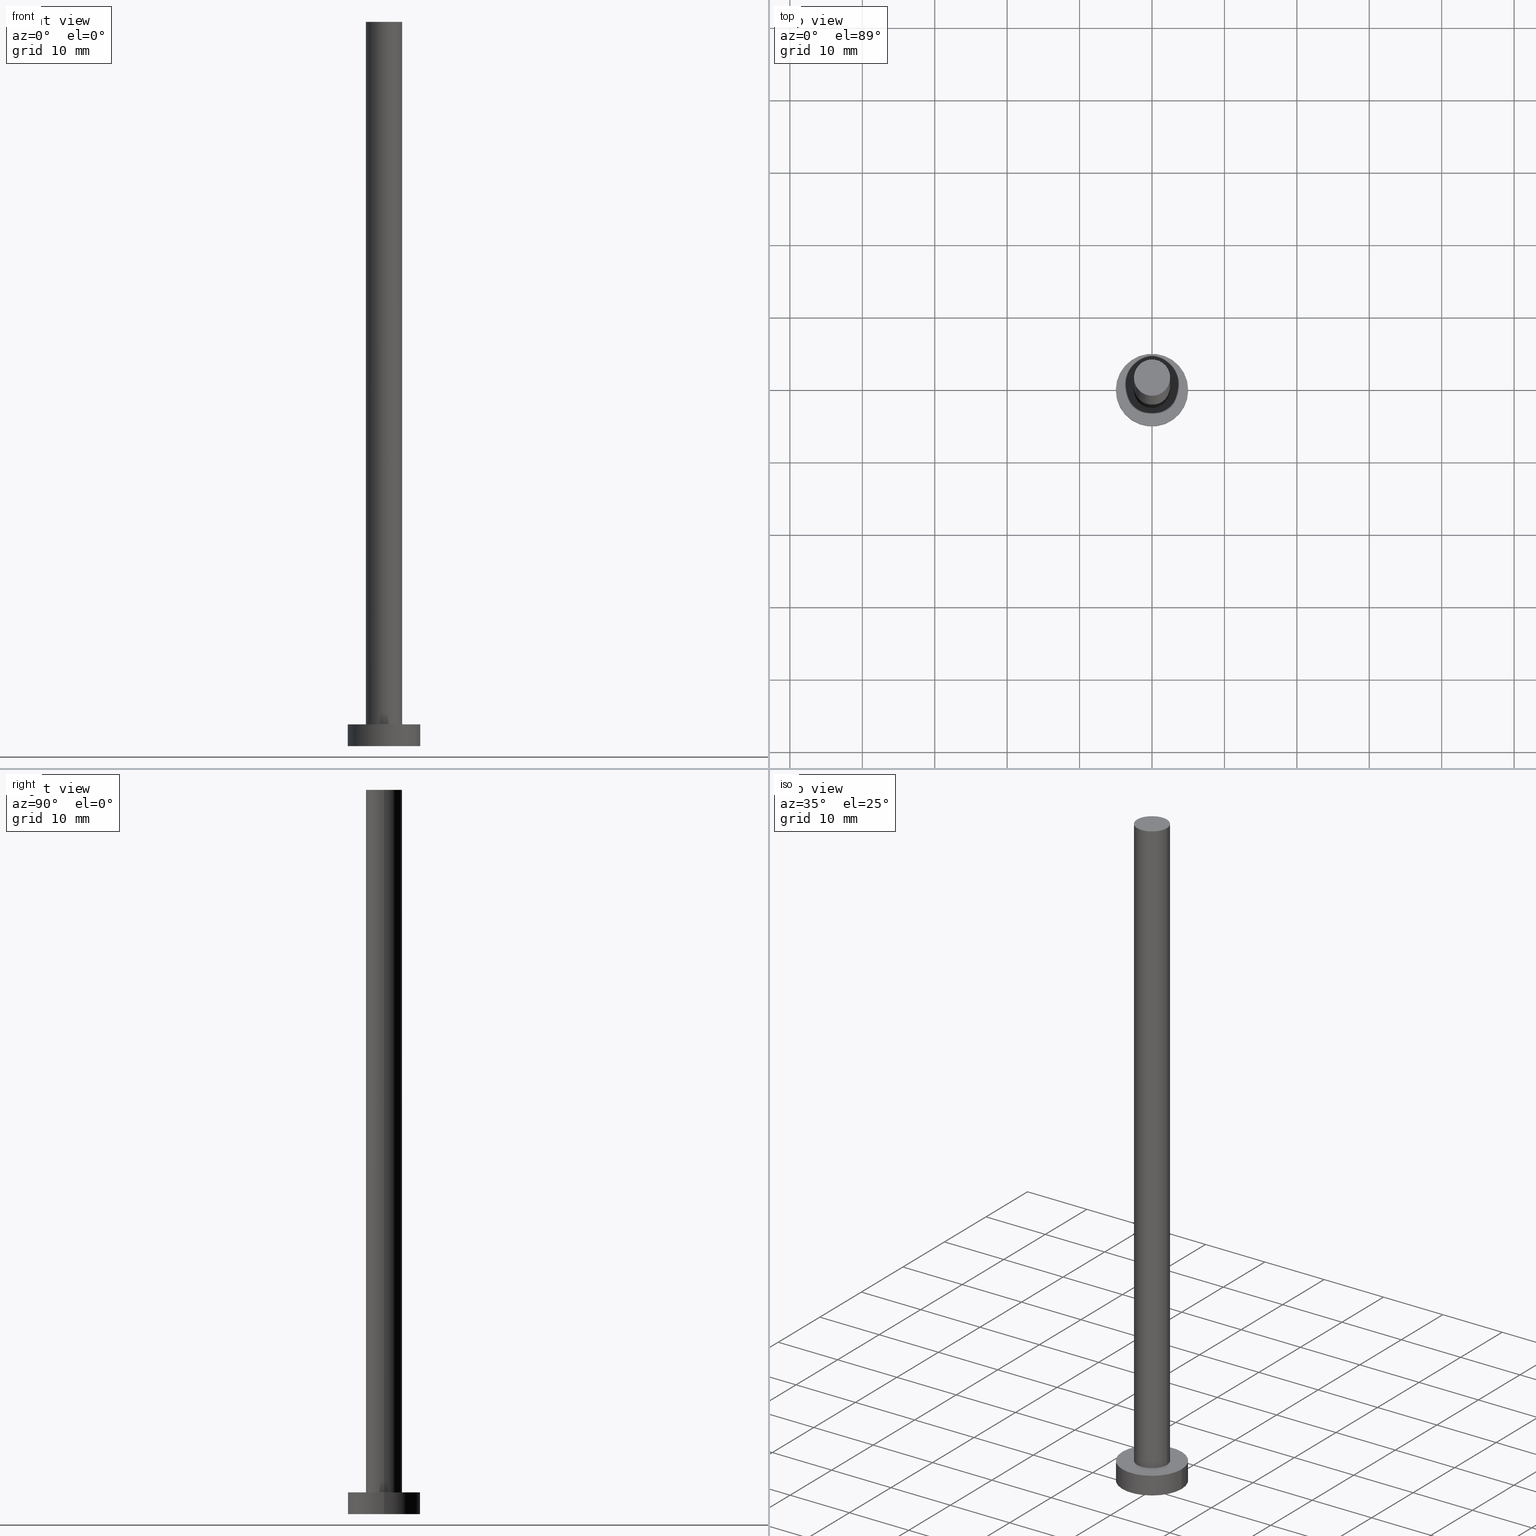
[diagram: canonical four-view strip — front | top / right | iso, engineering-drawing reading convention]
A machine part, canonical four-view strip (front | top / right | iso — engineering-drawing reading convention). The complete STEP part file that produces these views, byte-faithful:
ISO-10303-21;
HEADER;
FILE_DESCRIPTION (( 'STEP AP203' ),
    '1' );
FILE_NAME ('b135.STEP',
    '2023-02-13T13:27:08',
    ( '' ),
    ( '' ),
    'SwSTEP 2.0',
    'SolidWorks 2019',
    '' );
FILE_SCHEMA (( 'CONFIG_CONTROL_DESIGN' ));
ENDSEC;

DATA;
#1 = PERSON_AND_ORGANIZATION ( #2, #100 ) ;
#2 = PERSON ( 'NEUR�EN�', 'NEUR�EN�', 'NEUR�EN�', ('NEUR�EN�'), ('NEUR�EN�'), ('NEUR�EN�') ) ;
#3 = PERSON_AND_ORGANIZATION ( #2, #100 ) ;
#4 = ORIENTED_EDGE ( 'NONE', *, *, #13, .T. ) ;
#5 = ORIENTED_EDGE ( 'NONE', *, *, #215, .F. ) ;
#6 = AXIS2_PLACEMENT_3D ( 'NONE', #8, #81, #156 ) ;
#7 = VECTOR ( 'NONE', #96, 1000.000000000000000 ) ;
#8 = CARTESIAN_POINT ( 'NONE',  ( 0.000000000000000000, 0.000000000000000000, 100.0000000000000000 ) ) ;
#9 = CIRCLE ( 'NONE', #118, 5.000000000000000000 ) ;
#10 = ORIENTED_EDGE ( 'NONE', *, *, #125, .T. ) ;
#11 = ORIENTED_EDGE ( 'NONE', *, *, #119, .T. ) ;
#12 = EDGE_LOOP ( 'NONE', ( #79, #196 ) ) ;
#13 = EDGE_CURVE ( 'NONE', #155, #184, #154, .T. ) ;
#14 = CIRCLE ( 'NONE', #185, 2.500000000000000000 ) ;
#15 = LOCAL_TIME ( 14, 27, 8.000000000000000000, #208 ) ;
#16 = CALENDAR_DATE ( 2023, 13, 2 ) ;
#17 = DIRECTION ( 'NONE',  ( -0.000000000000000000, -0.000000000000000000, -1.000000000000000000 ) ) ;
#18 = APPROVAL ( #53, 'NEUR�EN�' ) ;
#19 = PERSON_AND_ORGANIZATION_ROLE ( 'design_supplier' ) ;
#20 = PERSON_AND_ORGANIZATION ( #2, #100 ) ;
#21 = SECURITY_CLASSIFICATION_LEVEL ( 'unclassified' ) ;
#22 = VECTOR ( 'NONE', #242, 1000.000000000000000 ) ;
#23 = PLANE ( 'NONE',  #36 ) ;
#24 = VECTOR ( 'NONE', #98, 1000.000000000000000 ) ;
#25 = CARTESIAN_POINT ( 'NONE',  ( 0.000000000000000000, 0.000000000000000000, 0.000000000000000000 ) ) ;
#26 = DIRECTION ( 'NONE',  ( 0.000000000000000000, 0.000000000000000000, 1.000000000000000000 ) ) ;
#27 = APPROVAL ( #115, 'NEUR�EN�' ) ;
#28 = PERSON_AND_ORGANIZATION ( #2, #100 ) ;
#29 = LINE ( 'NONE', #107, #22 ) ;
#30 = CARTESIAN_POINT ( 'NONE',  ( 2.500000000000000000, 3.061616997868382648E-16, 3.000000000000000000 ) ) ;
#31 = CARTESIAN_POINT ( 'NONE',  ( 0.000000000000000000, 0.000000000000000000, 0.000000000000000000 ) ) ;
#32 = DIRECTION ( 'NONE',  ( -1.000000000000000000, 0.000000000000000000, 0.000000000000000000 ) ) ;
#33 = CC_DESIGN_DATE_AND_TIME_ASSIGNMENT ( #163, #206, ( #157 ) ) ;
#34 = DATE_AND_TIME ( #135, #106 ) ;
#35 =( NAMED_UNIT ( * ) PLANE_ANGLE_UNIT ( ) SI_UNIT ( $, .RADIAN. ) );
#36 = AXIS2_PLACEMENT_3D ( 'NONE', #173, #213, #153 ) ;
#37 = FACE_OUTER_BOUND ( 'NONE', #181, .T. ) ;
#38 = DIRECTION ( 'NONE',  ( -1.000000000000000000, 0.000000000000000000, 0.000000000000000000 ) ) ;
#39 = APPLICATION_CONTEXT ( 'configuration controlled 3d designs of mechanical parts and assemblies' ) ;
#40 = DIRECTION ( 'NONE',  ( 0.000000000000000000, 0.000000000000000000, 1.000000000000000000 ) ) ;
#41 = APPROVAL_PERSON_ORGANIZATION ( #51, #87, #54 ) ;
#42 = VERTEX_POINT ( 'NONE', #177 ) ;
#43 = CC_DESIGN_PERSON_AND_ORGANIZATION_ASSIGNMENT ( #167, #254, ( #248 ) ) ;
#44 = FACE_OUTER_BOUND ( 'NONE', #102, .T. ) ;
#45 = AXIS2_PLACEMENT_3D ( 'NONE', #25, #197, #241 ) ;
#46 = ORIENTED_EDGE ( 'NONE', *, *, #165, .F. ) ;
#47 = ORIENTED_EDGE ( 'NONE', *, *, #109, .F. ) ;
#48 = EDGE_LOOP ( 'NONE', ( #222, #85, #141, #160 ) ) ;
#49 = ORIENTED_EDGE ( 'NONE', *, *, #125, .F. ) ;
#50 = PRODUCT_DEFINITION_SHAPE ( 'NONE', 'NONE',  #157 ) ;
#51 = PERSON_AND_ORGANIZATION ( #2, #100 ) ;
#52 = DIRECTION ( 'NONE',  ( 1.000000000000000000, 0.000000000000000000, -0.000000000000000000 ) ) ;
#53 = APPROVAL_STATUS ( 'not_yet_approved' ) ;
#54 = APPROVAL_ROLE ( '' ) ;
#55 = CARTESIAN_POINT ( 'NONE',  ( 5.000000000000000000, 6.123233995736766282E-16, 0.000000000000000000 ) ) ;
#56 = PERSON_AND_ORGANIZATION_ROLE ( 'design_owner' ) ;
#57 = CARTESIAN_POINT ( 'NONE',  ( 0.000000000000000000, 0.000000000000000000, 100.0000000000000000 ) ) ;
#58 = ADVANCED_FACE ( 'NONE', ( #105 ), #220, .T. ) ;
#59 = EDGE_CURVE ( 'NONE', #42, #147, #29, .T. ) ;
#60 = FACE_OUTER_BOUND ( 'NONE', #48, .T. ) ;
#61 = APPROVAL_PERSON_ORGANIZATION ( #20, #27, #235 ) ;
#62 = PLANE ( 'NONE',  #191 ) ;
#63 = CC_DESIGN_PERSON_AND_ORGANIZATION_ASSIGNMENT ( #150, #56, ( #86 ) ) ;
#64 = ADVANCED_FACE ( 'NONE', ( #44 ), #122, .T. ) ;
#65 = EDGE_CURVE ( 'NONE', #217, #121, #209, .T. ) ;
#66 = CC_DESIGN_PERSON_AND_ORGANIZATION_ASSIGNMENT ( #3, #19, ( #248 ) ) ;
#67 = EDGE_CURVE ( 'NONE', #147, #161, #133, .T. ) ;
#68 = DIRECTION ( 'NONE',  ( 0.000000000000000000, 0.000000000000000000, 1.000000000000000000 ) ) ;
#69 = CC_DESIGN_APPROVAL ( #87, ( #248 ) ) ;
#70 = CALENDAR_DATE ( 2023, 13, 2 ) ;
#71 = LINE ( 'NONE', #190, #24 ) ;
#72 = LINE ( 'NONE', #128, #7 ) ;
#73 = CARTESIAN_POINT ( 'NONE',  ( 0.000000000000000000, 0.000000000000000000, 0.000000000000000000 ) ) ;
#74 = DIRECTION ( 'NONE',  ( -0.000000000000000000, -0.000000000000000000, -1.000000000000000000 ) ) ;
#75 = DATE_AND_TIME ( #234, #15 ) ;
#76 = EDGE_LOOP ( 'NONE', ( #94, #46 ) ) ;
#77 = LOCAL_TIME ( 14, 27, 8.000000000000000000, #228 ) ;
#78 = DIRECTION ( 'NONE',  ( -0.000000000000000000, -0.000000000000000000, -1.000000000000000000 ) ) ;
#79 = ORIENTED_EDGE ( 'NONE', *, *, #215, .T. ) ;
#80 = CC_DESIGN_SECURITY_CLASSIFICATION ( #236, ( #248 ) ) ;
#81 = DIRECTION ( 'NONE',  ( -0.000000000000000000, -0.000000000000000000, -1.000000000000000000 ) ) ;
#82 = ADVANCED_BREP_SHAPE_REPRESENTATION ( 'b135', ( #229, #45 ), #243 ) ;
#83 = AXIS2_PLACEMENT_3D ( 'NONE', #123, #26, #124 ) ;
#84 = VERTEX_POINT ( 'NONE', #110 ) ;
#85 = ORIENTED_EDGE ( 'NONE', *, *, #104, .T. ) ;
#86 = PRODUCT ( 'b135', 'b135', '', ( #231 ) ) ;
#87 = APPROVAL ( #146, 'NEUR�EN�' ) ;
#88 = FACE_OUTER_BOUND ( 'NONE', #244, .T. ) ;
#89 = CARTESIAN_POINT ( 'NONE',  ( 0.000000000000000000, 0.000000000000000000, 0.000000000000000000 ) ) ;
#90 = ORIENTED_EDGE ( 'NONE', *, *, #67, .T. ) ;
#91 = AXIS2_PLACEMENT_3D ( 'NONE', #162, #245, #192 ) ;
#92 = COORDINATED_UNIVERSAL_TIME_OFFSET ( 1, 0, .AHEAD. ) ;
#93 = DIRECTION ( 'NONE',  ( 1.000000000000000000, 0.000000000000000000, 0.000000000000000000 ) ) ;
#94 = ORIENTED_EDGE ( 'NONE', *, *, #65, .F. ) ;
#95 = DATE_AND_TIME ( #16, #152 ) ;
#96 = DIRECTION ( 'NONE',  ( -0.000000000000000000, -0.000000000000000000, -1.000000000000000000 ) ) ;
#97 = APPROVAL_ROLE ( '' ) ;
#98 = DIRECTION ( 'NONE',  ( -0.000000000000000000, -0.000000000000000000, -1.000000000000000000 ) ) ;
#99 = SHAPE_DEFINITION_REPRESENTATION ( #50, #82 ) ;
#100 = ORGANIZATION ( 'NEUR�EN�', 'NEUR�EN�', '' ) ;
#101 = CIRCLE ( 'NONE', #169, 2.500000000000000000 ) ;
#102 = EDGE_LOOP ( 'NONE', ( #214, #203, #11, #251 ) ) ;
#103 = CARTESIAN_POINT ( 'NONE',  ( 0.000000000000000000, 0.000000000000000000, 3.000000000000000000 ) ) ;
#104 = EDGE_CURVE ( 'NONE', #155, #121, #71, .T. ) ;
#105 = FACE_OUTER_BOUND ( 'NONE', #140, .T. ) ;
#106 = LOCAL_TIME ( 14, 27, 8.000000000000000000, #237 ) ;
#107 = CARTESIAN_POINT ( 'NONE',  ( -2.500000000000000000, 0.000000000000000000, 100.0000000000000000 ) ) ;
#108 = DATE_AND_TIME ( #70, #77 ) ;
#109 = EDGE_CURVE ( 'NONE', #84, #161, #189, .T. ) ;
#110 = CARTESIAN_POINT ( 'NONE',  ( 2.500000000000000000, 3.061616997868382648E-16, 100.0000000000000000 ) ) ;
#111 = CIRCLE ( 'NONE', #129, 5.000000000000000000 ) ;
#112 = CALENDAR_DATE ( 2023, 13, 2 ) ;
#113 = DIRECTION ( 'NONE',  ( 0.000000000000000000, 0.000000000000000000, 1.000000000000000000 ) ) ;
#114 = CARTESIAN_POINT ( 'NONE',  ( -5.000000000000000000, 0.000000000000000000, 3.000000000000000000 ) ) ;
#115 = APPROVAL_STATUS ( 'not_yet_approved' ) ;
#116 = DIRECTION ( 'NONE',  ( 0.000000000000000000, 0.000000000000000000, 1.000000000000000000 ) ) ;
#117 = APPROVAL_DATE_TIME ( #75, #27 ) ;
#118 = AXIS2_PLACEMENT_3D ( 'NONE', #73, #164, #250 ) ;
#119 = EDGE_CURVE ( 'NONE', #161, #147, #14, .T. ) ;
#120 = DIRECTION ( 'NONE',  ( 1.000000000000000000, 0.000000000000000000, -0.000000000000000000 ) ) ;
#121 = VERTEX_POINT ( 'NONE', #55 ) ;
#122 = CYLINDRICAL_SURFACE ( 'NONE', #6, 2.500000000000000000 ) ;
#123 = CARTESIAN_POINT ( 'NONE',  ( 0.000000000000000000, 0.000000000000000000, 3.000000000000000000 ) ) ;
#124 = DIRECTION ( 'NONE',  ( 1.000000000000000000, 0.000000000000000000, 0.000000000000000000 ) ) ;
#125 = EDGE_CURVE ( 'NONE', #184, #155, #111, .T. ) ;
#126 = PERSON_AND_ORGANIZATION ( #2, #100 ) ;
#127 = CARTESIAN_POINT ( 'NONE',  ( 0.000000000000000000, 0.000000000000000000, 3.000000000000000000 ) ) ;
#128 = CARTESIAN_POINT ( 'NONE',  ( -5.000000000000000000, 0.000000000000000000, 3.000000000000000000 ) ) ;
#129 = AXIS2_PLACEMENT_3D ( 'NONE', #127, #68, #93 ) ;
#130 = LOCAL_TIME ( 14, 27, 8.000000000000000000, #92 ) ;
#131 = PERSON_AND_ORGANIZATION_ROLE ( 'creator' ) ;
#132 = DIRECTION ( 'NONE',  ( 1.000000000000000000, 0.000000000000000000, 0.000000000000000000 ) ) ;
#133 = CIRCLE ( 'NONE', #218, 2.500000000000000000 ) ;
#134 = CC_DESIGN_PERSON_AND_ORGANIZATION_ASSIGNMENT ( #126, #131, ( #157 ) ) ;
#135 = CALENDAR_DATE ( 2023, 13, 2 ) ;
#136 = CARTESIAN_POINT ( 'NONE',  ( 0.000000000000000000, 0.000000000000000000, 3.000000000000000000 ) ) ;
#137 = CYLINDRICAL_SURFACE ( 'NONE', #142, 5.000000000000000000 ) ;
#138 = CARTESIAN_POINT ( 'NONE',  ( 0.000000000000000000, 0.000000000000000000, 100.0000000000000000 ) ) ;
#139 = DIRECTION ( 'NONE',  ( 1.000000000000000000, 0.000000000000000000, 0.000000000000000000 ) ) ;
#140 = EDGE_LOOP ( 'NONE', ( #176, #49, #201, #183 ) ) ;
#141 = ORIENTED_EDGE ( 'NONE', *, *, #165, .T. ) ;
#142 = AXIS2_PLACEMENT_3D ( 'NONE', #136, #78, #38 ) ;
#143 = ORIENTED_EDGE ( 'NONE', *, *, #67, .F. ) ;
#144 = EDGE_LOOP ( 'NONE', ( #143, #227 ) ) ;
#145 = DIRECTION ( 'NONE',  ( 0.000000000000000000, 0.000000000000000000, 1.000000000000000000 ) ) ;
#146 = APPROVAL_STATUS ( 'not_yet_approved' ) ;
#147 = VERTEX_POINT ( 'NONE', #205 ) ;
#148 = PLANE ( 'NONE',  #230 ) ;
#149 = CC_DESIGN_APPROVAL ( #18, ( #157 ) ) ;
#150 = PERSON_AND_ORGANIZATION ( #2, #100 ) ;
#151 = ADVANCED_FACE ( 'NONE', ( #207 ), #148, .F. ) ;
#152 = LOCAL_TIME ( 14, 27, 8.000000000000000000, #233 ) ;
#153 = DIRECTION ( 'NONE',  ( 1.000000000000000000, 0.000000000000000000, -0.000000000000000000 ) ) ;
#154 = CIRCLE ( 'NONE', #83, 5.000000000000000000 ) ;
#155 = VERTEX_POINT ( 'NONE', #204 ) ;
#156 = DIRECTION ( 'NONE',  ( -1.000000000000000000, 0.000000000000000000, 0.000000000000000000 ) ) ;
#157 = PRODUCT_DEFINITION ( 'NEZN�M�', '', #248, #226 ) ;
#158 =( NAMED_UNIT ( * ) SI_UNIT ( $, .STERADIAN. ) SOLID_ANGLE_UNIT ( ) );
#159 = CIRCLE ( 'NONE', #91, 2.500000000000000000 ) ;
#160 = ORIENTED_EDGE ( 'NONE', *, *, #174, .F. ) ;
#161 = VERTEX_POINT ( 'NONE', #30 ) ;
#162 = CARTESIAN_POINT ( 'NONE',  ( 0.000000000000000000, 0.000000000000000000, 100.0000000000000000 ) ) ;
#163 = DATE_AND_TIME ( #112, #130 ) ;
#164 = DIRECTION ( 'NONE',  ( 0.000000000000000000, 0.000000000000000000, 1.000000000000000000 ) ) ;
#165 = EDGE_CURVE ( 'NONE', #121, #217, #9, .T. ) ;
#166 = DIRECTION ( 'NONE',  ( 1.000000000000000000, 0.000000000000000000, 0.000000000000000000 ) ) ;
#167 = PERSON_AND_ORGANIZATION ( #2, #100 ) ;
#168 = CC_DESIGN_PERSON_AND_ORGANIZATION_ASSIGNMENT ( #1, #171, ( #236 ) ) ;
#169 = AXIS2_PLACEMENT_3D ( 'NONE', #212, #175, #139 ) ;
#170 =( LENGTH_UNIT ( ) NAMED_UNIT ( * ) SI_UNIT ( .MILLI., .METRE. ) );
#171 = PERSON_AND_ORGANIZATION_ROLE ( 'classification_officer' ) ;
#172 = AXIS2_PLACEMENT_3D ( 'NONE', #57, #74, #32 ) ;
#173 = CARTESIAN_POINT ( 'NONE',  ( 0.000000000000000000, 0.000000000000000000, 3.000000000000000000 ) ) ;
#174 = EDGE_CURVE ( 'NONE', #184, #217, #72, .T. ) ;
#175 = DIRECTION ( 'NONE',  ( 0.000000000000000000, 0.000000000000000000, 1.000000000000000000 ) ) ;
#176 = ORIENTED_EDGE ( 'NONE', *, *, #104, .F. ) ;
#177 = CARTESIAN_POINT ( 'NONE',  ( -2.500000000000000000, 0.000000000000000000, 100.0000000000000000 ) ) ;
#178 = ADVANCED_FACE ( 'NONE', ( #88 ), #255, .T. ) ;
#179 = DIRECTION ( 'NONE',  ( -1.000000000000000000, 0.000000000000000000, 0.000000000000000000 ) ) ;
#180 = CLOSED_SHELL ( 'NONE', ( #64, #211, #58, #216, #151, #178, #239 ) ) ;
#181 = EDGE_LOOP ( 'NONE', ( #10, #4 ) ) ;
#182 = APPROVAL_DATE_TIME ( #108, #18 ) ;
#183 = ORIENTED_EDGE ( 'NONE', *, *, #65, .T. ) ;
#184 = VERTEX_POINT ( 'NONE', #114 ) ;
#185 = AXIS2_PLACEMENT_3D ( 'NONE', #224, #145, #132 ) ;
#186 = APPROVAL_PERSON_ORGANIZATION ( #28, #18, #97 ) ;
#187 = DIRECTION ( 'NONE',  ( 0.000000000000000000, 0.000000000000000000, 1.000000000000000000 ) ) ;
#188 = APPROVAL_DATE_TIME ( #95, #87 ) ;
#189 = LINE ( 'NONE', #252, #198 ) ;
#190 = CARTESIAN_POINT ( 'NONE',  ( 5.000000000000000000, 6.123233995736766282E-16, 3.000000000000000000 ) ) ;
#191 = AXIS2_PLACEMENT_3D ( 'NONE', #138, #40, #120 ) ;
#192 = DIRECTION ( 'NONE',  ( 1.000000000000000000, 0.000000000000000000, 0.000000000000000000 ) ) ;
#193 = DATE_TIME_ROLE ( 'classification_date' ) ;
#194 = CC_DESIGN_DATE_AND_TIME_ASSIGNMENT ( #34, #193, ( #236 ) ) ;
#195 = FACE_BOUND ( 'NONE', #144, .T. ) ;
#196 = ORIENTED_EDGE ( 'NONE', *, *, #199, .T. ) ;
#197 = DIRECTION ( 'NONE',  ( 0.000000000000000000, 0.000000000000000000, 1.000000000000000000 ) ) ;
#198 = VECTOR ( 'NONE', #17, 1000.000000000000000 ) ;
#199 = EDGE_CURVE ( 'NONE', #84, #42, #159, .T. ) ;
#200 = APPLICATION_PROTOCOL_DEFINITION ( 'international standard', 'config_control_design', 1994, #249 ) ;
#201 = ORIENTED_EDGE ( 'NONE', *, *, #174, .T. ) ;
#202 = DIRECTION ( 'NONE',  ( -0.000000000000000000, -0.000000000000000000, -1.000000000000000000 ) ) ;
#203 = ORIENTED_EDGE ( 'NONE', *, *, #109, .T. ) ;
#204 = CARTESIAN_POINT ( 'NONE',  ( 5.000000000000000000, 6.123233995736766282E-16, 3.000000000000000000 ) ) ;
#205 = CARTESIAN_POINT ( 'NONE',  ( -2.500000000000000000, 0.000000000000000000, 3.000000000000000000 ) ) ;
#206 = DATE_TIME_ROLE ( 'creation_date' ) ;
#207 = FACE_OUTER_BOUND ( 'NONE', #76, .T. ) ;
#208 = COORDINATED_UNIVERSAL_TIME_OFFSET ( 1, 0, .AHEAD. ) ;
#209 = CIRCLE ( 'NONE', #246, 5.000000000000000000 ) ;
#210 = FACE_OUTER_BOUND ( 'NONE', #12, .T. ) ;
#211 = ADVANCED_FACE ( 'NONE', ( #60 ), #137, .T. ) ;
#212 = CARTESIAN_POINT ( 'NONE',  ( 0.000000000000000000, 0.000000000000000000, 100.0000000000000000 ) ) ;
#213 = DIRECTION ( 'NONE',  ( 0.000000000000000000, 0.000000000000000000, 1.000000000000000000 ) ) ;
#214 = ORIENTED_EDGE ( 'NONE', *, *, #199, .F. ) ;
#215 = EDGE_CURVE ( 'NONE', #42, #84, #101, .T. ) ;
#216 = ADVANCED_FACE ( 'NONE', ( #195, #37 ), #23, .T. ) ;
#217 = VERTEX_POINT ( 'NONE', #238 ) ;
#218 = AXIS2_PLACEMENT_3D ( 'NONE', #225, #116, #247 ) ;
#219 = CC_DESIGN_APPROVAL ( #27, ( #236 ) ) ;
#220 = CYLINDRICAL_SURFACE ( 'NONE', #253, 5.000000000000000000 ) ;
#221 = ORIENTED_EDGE ( 'NONE', *, *, #59, .T. ) ;
#222 = ORIENTED_EDGE ( 'NONE', *, *, #13, .F. ) ;
#223 = APPLICATION_PROTOCOL_DEFINITION ( 'international standard', 'config_control_design', 1994, #39 ) ;
#224 = CARTESIAN_POINT ( 'NONE',  ( 0.000000000000000000, 0.000000000000000000, 3.000000000000000000 ) ) ;
#225 = CARTESIAN_POINT ( 'NONE',  ( 0.000000000000000000, 0.000000000000000000, 3.000000000000000000 ) ) ;
#226 = DESIGN_CONTEXT ( 'detailed design', #39, 'design' ) ;
#227 = ORIENTED_EDGE ( 'NONE', *, *, #119, .F. ) ;
#228 = COORDINATED_UNIVERSAL_TIME_OFFSET ( 1, 0, .AHEAD. ) ;
#229 = MANIFOLD_SOLID_BREP ( 'P�idat vysunut�m3', #180 ) ;
#230 = AXIS2_PLACEMENT_3D ( 'NONE', #31, #113, #52 ) ;
#231 = MECHANICAL_CONTEXT ( 'NONE', #249, 'mechanical' ) ;
#232 = UNCERTAINTY_MEASURE_WITH_UNIT (LENGTH_MEASURE( 1.000000000000000082E-05 ), #170, 'distance_accuracy_value', 'NONE');
#233 = COORDINATED_UNIVERSAL_TIME_OFFSET ( 1, 0, .AHEAD. ) ;
#234 = CALENDAR_DATE ( 2023, 13, 2 ) ;
#235 = APPROVAL_ROLE ( '' ) ;
#236 = SECURITY_CLASSIFICATION ( '', '', #21 ) ;
#237 = COORDINATED_UNIVERSAL_TIME_OFFSET ( 1, 0, .AHEAD. ) ;
#238 = CARTESIAN_POINT ( 'NONE',  ( -5.000000000000000000, 0.000000000000000000, 0.000000000000000000 ) ) ;
#239 = ADVANCED_FACE ( 'NONE', ( #210 ), #62, .T. ) ;
#240 = PRODUCT_RELATED_PRODUCT_CATEGORY ( 'detail', '', ( #86 ) ) ;
#241 = DIRECTION ( 'NONE',  ( 1.000000000000000000, 0.000000000000000000, 0.000000000000000000 ) ) ;
#242 = DIRECTION ( 'NONE',  ( -0.000000000000000000, -0.000000000000000000, -1.000000000000000000 ) ) ;
#243 =( GEOMETRIC_REPRESENTATION_CONTEXT ( 3 ) GLOBAL_UNCERTAINTY_ASSIGNED_CONTEXT ( ( #232 ) ) GLOBAL_UNIT_ASSIGNED_CONTEXT ( ( #170, #35, #158 ) ) REPRESENTATION_CONTEXT ( 'NONE', 'WORKASPACE' ) );
#244 = EDGE_LOOP ( 'NONE', ( #47, #5, #221, #90 ) ) ;
#245 = DIRECTION ( 'NONE',  ( 0.000000000000000000, 0.000000000000000000, 1.000000000000000000 ) ) ;
#246 = AXIS2_PLACEMENT_3D ( 'NONE', #89, #187, #166 ) ;
#247 = DIRECTION ( 'NONE',  ( 1.000000000000000000, 0.000000000000000000, 0.000000000000000000 ) ) ;
#248 = PRODUCT_DEFINITION_FORMATION_WITH_SPECIFIED_SOURCE ( 'LIBOVOLN�', '', #86, .NOT_KNOWN. ) ;
#249 = APPLICATION_CONTEXT ( 'configuration controlled 3d designs of mechanical parts and assemblies' ) ;
#250 = DIRECTION ( 'NONE',  ( 1.000000000000000000, 0.000000000000000000, 0.000000000000000000 ) ) ;
#251 = ORIENTED_EDGE ( 'NONE', *, *, #59, .F. ) ;
#252 = CARTESIAN_POINT ( 'NONE',  ( 2.500000000000000000, 3.061616997868382648E-16, 100.0000000000000000 ) ) ;
#253 = AXIS2_PLACEMENT_3D ( 'NONE', #103, #202, #179 ) ;
#254 = PERSON_AND_ORGANIZATION_ROLE ( 'creator' ) ;
#255 = CYLINDRICAL_SURFACE ( 'NONE', #172, 2.500000000000000000 ) ;
ENDSEC;
END-ISO-10303-21;
